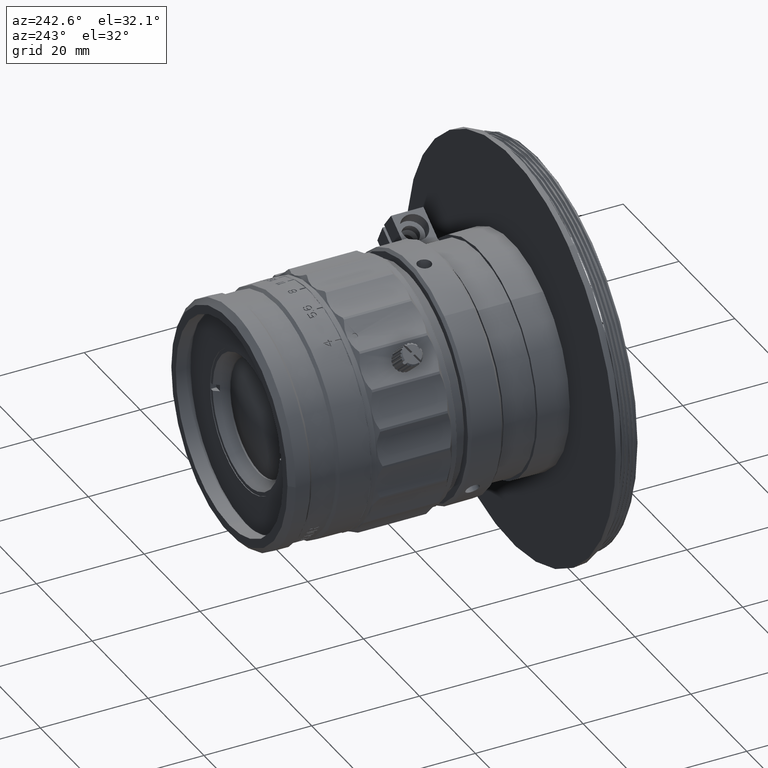
[diagram: clean part render]
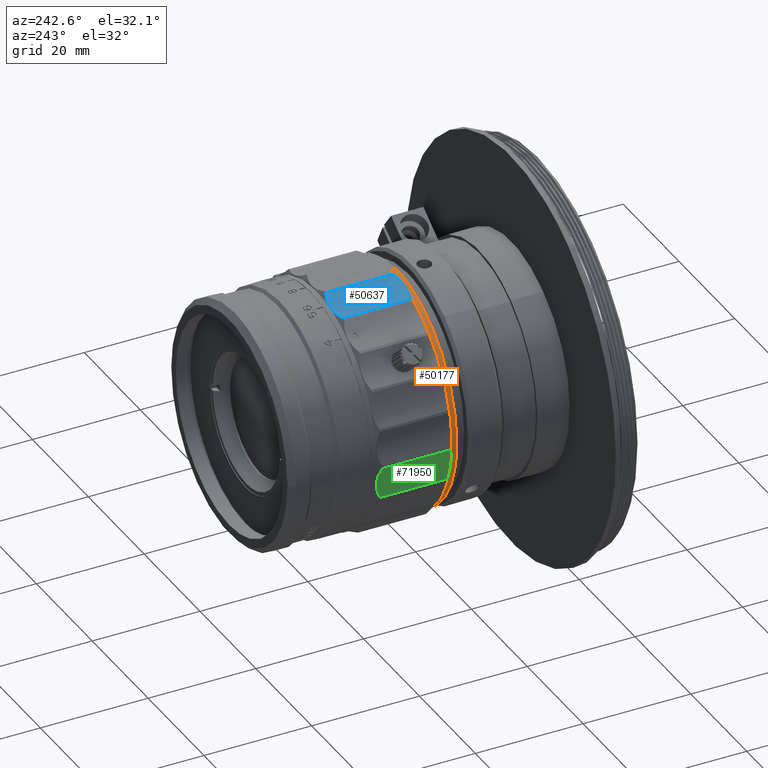
[diagram: same view with three faces highlighted in distinct colors, each labeled with its STEP entity id]
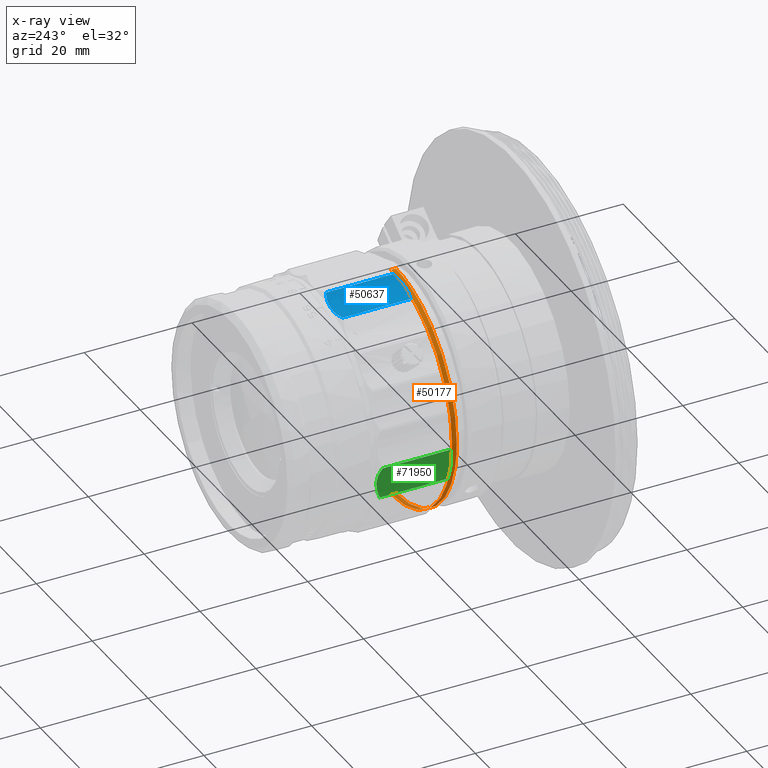
[diagram: x-ray of the same camera — body ghosted, the three highlighted faces saturated]
A machine part, auxiliary view with three faces highlighted in distinct colors.
The next image is the same camera in x-ray (body ghosted, the three faces saturated) — at least one of them is partly hidden behind the body in this view.
Their STEP definitions:

[orange] entity #50177 — the highlighted face is a freeform B-spline surface patch.
#925 = CARTESIAN_POINT ( 'NONE',  ( 13.03904262852874041, 28.15326239999565061, 70.65835875099560326 ) ) ;
#974 = EDGE_CURVE ( 'NONE', #14579, #4726, #38221, .T. ) ;
#1238 = B_SPLINE_CURVE_WITH_KNOTS ( 'NONE', 1,
 ( #12900, #40973 ),
 .UNSPECIFIED., .F., .F.,
 ( 2, 2 ),
 ( -1.000000000000000000, 0.0000000000000000000 ),
 .UNSPECIFIED. ) ;
#1413 = CARTESIAN_POINT ( 'NONE',  ( 0.2688982990429640840, 28.15326240000001334, 27.05835874608746394 ) ) ;
#1557 = VERTEX_POINT ( 'NONE', #56327 ) ;
#2166 = CARTESIAN_POINT ( 'NONE',  ( 13.03904262852874041, 27.25326239999999700, 70.65835875100000862 ) ) ;
#4726 = VERTEX_POINT ( 'NONE', #62807 ) ;
#6589 = EDGE_CURVE ( 'NONE', #12415, #1557, #15134, .T. ) ;
#7671 = CARTESIAN_POINT ( 'NONE',  ( -8.760957366995629769, 28.15326239999565061, 48.85835875249040328 ) ) ;
#12415 = VERTEX_POINT ( 'NONE', #14160 ) ;
#12732 = CARTESIAN_POINT ( 'NONE',  ( -8.760957366995629769, 28.15326239999565061, 48.85835875249040328 ) ) ;
#12900 = CARTESIAN_POINT ( 'NONE',  ( 13.03904263449042134, 28.15326239999999913, 27.05835875100000010 ) ) ;
#13690 = EDGE_CURVE ( 'NONE', #1557, #4726, #66036, .T. ) ;
#14160 = CARTESIAN_POINT ( 'NONE',  ( -8.760957366999999607, 27.25326239999999700, 48.85835875249040328 ) ) ;
#14579 = VERTEX_POINT ( 'NONE', #35716 ) ;
#14588 = CARTESIAN_POINT ( 'NONE',  ( 13.03904263449042134, 27.25326239999999700, 27.05835875100000010 ) ) ;
#14694 = CARTESIAN_POINT ( 'NONE',  ( -8.760957366999999607, 27.25326239999999700, 48.85835875249040328 ) ) ;
#15134 =( BOUNDED_CURVE ( )  B_SPLINE_CURVE ( 3, ( #14694, #30935, #53464, #2166 ),
 .UNSPECIFIED., .F., .F. ) 
 B_SPLINE_CURVE_WITH_KNOTS ( ( 4, 4 ),
 ( -1.570796326794895004, 0.0000000000000000000 ),
 .UNSPECIFIED. ) 
 CURVE ( )  GEOMETRIC_REPRESENTATION_ITEM ( )  RATIONAL_B_SPLINE_CURVE ( ( 1.000000000000000000, 0.8047378543117238436, 0.8047378543117238436, 1.000000000000000000 ) ) 
 REPRESENTATION_ITEM ( '' )  );
#15242 = CARTESIAN_POINT ( 'NONE',  ( -30.56095735805750380, 27.25326240000000055, 70.65835873311500848 ) ) ;
#21512 = CARTESIAN_POINT ( 'NONE',  ( 13.03904262405749037, 28.15326239999999913, 70.65835875100002283 ) ) ;
#25266 = VERTEX_POINT ( 'NONE', #72036 ) ;
#26456 = VERTEX_POINT ( 'NONE', #44619 ) ;
#26967 = CARTESIAN_POINT ( 'NONE',  ( 13.03904262852874041, 28.15326239999565061, 70.65835875099560326 ) ) ;
#27768 = CARTESIAN_POINT ( 'NONE',  ( -30.56095735805750380, 28.15326240000000624, 70.65835873311500848 ) ) ;
#28363 = EDGE_CURVE ( 'NONE', #26456, #25266, #1238, .T. ) ;
#30488 = ORIENTED_EDGE ( 'NONE', *, *, #30709, .F. ) ;
#30709 = EDGE_CURVE ( 'NONE', #26456, #14579, #49976, .T. ) ;
#30935 = CARTESIAN_POINT ( 'NONE',  ( -8.760957362087458122, 27.25326240000000055, 61.62850309160416629 ) ) ;
#31657 =( BOUNDED_CURVE ( )  B_SPLINE_CURVE ( 3, ( #14588, #54454, #65889, #50008 ),
 .UNSPECIFIED., .F., .F. ) 
 B_SPLINE_CURVE_WITH_KNOTS ( ( 4, 4 ),
 ( -1.570796326794895004, 0.0000000000000000000 ),
 .UNSPECIFIED. ) 
 CURVE ( )  GEOMETRIC_REPRESENTATION_ITEM ( )  RATIONAL_B_SPLINE_CURVE ( ( 1.000000000000000000, 0.8047378540760217192, 0.8047378540760217192, 1.000000000000000000 ) ) 
 REPRESENTATION_ITEM ( '' )  );
#32507 = CARTESIAN_POINT ( 'NONE',  ( 13.03904262852874041, 27.25326239999999700, 70.65835875100000862 ) ) ;
#33057 = EDGE_LOOP ( 'NONE', ( #45771, #30488, #66736, #51260, #50581, #35174 ) ) ;
#34146 = CARTESIAN_POINT ( 'NONE',  ( 0.2688982951356555517, 28.15326239998692515, 70.65835875360610885 ) ) ;
#35174 = ORIENTED_EDGE ( 'NONE', *, *, #13690, .T. ) ;
#35261 = CARTESIAN_POINT ( 'NONE',  ( -8.760957366986898975, 28.15326239998690738, 61.62850309333560261 ) ) ;
#35386 = CARTESIAN_POINT ( 'NONE',  ( 13.03904263449042134, 28.15326239999999913, 27.05835875100000010 ) ) ;
#35716 = CARTESIAN_POINT ( 'NONE',  ( -8.760957366995629769, 28.15326239999565061, 48.85835875249040328 ) ) ;
#38221 =( BOUNDED_CURVE ( )  B_SPLINE_CURVE ( 3, ( #12732, #35261, #34146, #925 ),
 .UNSPECIFIED., .F., .F. ) 
 B_SPLINE_CURVE_WITH_KNOTS ( ( 4, 4 ),
 ( -1.570796326794895004, 0.0000000000000000000 ),
 .UNSPECIFIED. ) 
 CURVE ( )  GEOMETRIC_REPRESENTATION_ITEM ( )  RATIONAL_B_SPLINE_CURVE ( ( 1.000000000000000000, 0.8047378540760217192, 0.8047378540760217192, 1.000000000000000000 ) ) 
 REPRESENTATION_ITEM ( '' )  );
#40973 = CARTESIAN_POINT ( 'NONE',  ( 13.03904263449042134, 27.25326239999999700, 27.05835875100000010 ) ) ;
#44049 = CARTESIAN_POINT ( 'NONE',  ( -30.56095734911500017, 27.25326240000000055, 27.05835875100000010 ) ) ;
#44409 = FACE_OUTER_BOUND ( 'NONE', #33057, .T. ) ;
#44619 = CARTESIAN_POINT ( 'NONE',  ( 13.03904263449042134, 28.15326239999999913, 27.05835875100000010 ) ) ;
#45771 = ORIENTED_EDGE ( 'NONE', *, *, #974, .F. ) ;
#47192 = CARTESIAN_POINT ( 'NONE',  ( -8.760957364706655426, 28.15326239999999558, 36.08821440474175546 ) ) ;
#49578 = CARTESIAN_POINT ( 'NONE',  ( 13.03904263299999400, 27.25326239999999700, 27.05835875099998944 ) ) ;
#49976 =( BOUNDED_CURVE ( )  B_SPLINE_CURVE ( 3, ( #35386, #1413, #47192, #7671 ),
 .UNSPECIFIED., .F., .F. ) 
 B_SPLINE_CURVE_WITH_KNOTS ( ( 4, 4 ),
 ( -1.570796326794895004, 0.0000000000000000000 ),
 .UNSPECIFIED. ) 
 CURVE ( )  GEOMETRIC_REPRESENTATION_ITEM ( )  RATIONAL_B_SPLINE_CURVE ( ( 1.000000000000000000, 0.8047378540760217192, 0.8047378540760217192, 1.000000000000000000 ) ) 
 REPRESENTATION_ITEM ( '' )  );
#50008 = CARTESIAN_POINT ( 'NONE',  ( -8.760957366999999607, 27.25326239999999700, 48.85835875249040328 ) ) ;
#50177 = ADVANCED_FACE ( 'NONE', ( #44409 ), #52123, .F. ) ;
#50581 = ORIENTED_EDGE ( 'NONE', *, *, #6589, .T. ) ;
#51260 = ORIENTED_EDGE ( 'NONE', *, *, #66693, .T. ) ;
#52123 =( BOUNDED_SURFACE ( )  B_SPLINE_SURFACE ( 1, 3, ( 
 ( #21512, #27768, #55837, #72832 ),
 ( #65823, #15242, #44049, #49578 ) ),
 .UNSPECIFIED., .F., .F., .F. ) 
 B_SPLINE_SURFACE_WITH_KNOTS ( ( 2, 2 ),
 ( 4, 4 ),
 ( 0.0000000000000000000, 1.000000000000000000 ),
 ( 0.0000000000000000000, 1.000000000000000000 ),
 .UNSPECIFIED. ) 
 GEOMETRIC_REPRESENTATION_ITEM ( )  RATIONAL_B_SPLINE_SURFACE ( (
 ( 1.000000000000000000, 0.3333333334700690487, 0.3333333334700690487, 1.000000000000000000),
 ( 1.000000000000000000, 0.3333333334700690487, 0.3333333334700690487, 1.000000000000000000) ) ) 
 REPRESENTATION_ITEM ( '' )  SURFACE ( )  );
#53464 = CARTESIAN_POINT ( 'NONE',  ( 0.2688982918395820820, 27.25326240000000055, 70.65835874576160336 ) ) ;
#54454 = CARTESIAN_POINT ( 'NONE',  ( 0.2688982867417415434, 27.25326239999999700, 27.05835875329334073 ) ) ;
#55837 = CARTESIAN_POINT ( 'NONE',  ( -30.56095734911500017, 28.15326240000000624, 27.05835875100000010 ) ) ;
#56327 = CARTESIAN_POINT ( 'NONE',  ( 13.03904262852874041, 27.25326239999999700, 70.65835875100000862 ) ) ;
#62807 = CARTESIAN_POINT ( 'NONE',  ( 13.03904262852874041, 28.15326239999565061, 70.65835875099560326 ) ) ;
#65823 = CARTESIAN_POINT ( 'NONE',  ( 13.03904262405749037, 27.25326239999999700, 70.65835875100002283 ) ) ;
#65889 = CARTESIAN_POINT ( 'NONE',  ( -8.760957371912549974, 27.25326239999999700, 36.08821441704296262 ) ) ;
#66036 = B_SPLINE_CURVE_WITH_KNOTS ( 'NONE', 1,
 ( #32507, #26967 ),
 .UNSPECIFIED., .F., .F.,
 ( 2, 2 ),
 ( -1.000000000000000000, 0.0000000000000000000 ),
 .UNSPECIFIED. ) ;
#66693 = EDGE_CURVE ( 'NONE', #25266, #12415, #31657, .T. ) ;
#66736 = ORIENTED_EDGE ( 'NONE', *, *, #28363, .T. ) ;
#72036 = CARTESIAN_POINT ( 'NONE',  ( 13.03904263449042134, 27.25326239999999700, 27.05835875100000010 ) ) ;
#72832 = CARTESIAN_POINT ( 'NONE',  ( 13.03904263299999400, 28.15326239999999913, 27.05835875099998944 ) ) ;

[blue] entity #50637 — the highlighted face is a freeform B-spline surface patch.
#779 = ORIENTED_EDGE ( 'NONE', *, *, #35118, .T. ) ;
#4120 = CARTESIAN_POINT ( 'NONE',  ( 10.88898748195123112, 28.13018945723671038, 71.25539567373813554 ) ) ;
#4469 = CARTESIAN_POINT ( 'NONE',  ( 9.679009942915314468, 41.82673240047798657, 70.67784002498591178 ) ) ;
#4834 = CARTESIAN_POINT ( 'NONE',  ( 6.362159460868524796, 41.88065777170962178, 69.84443326052802092 ) ) ;
#9273 = CARTESIAN_POINT ( 'NONE',  ( 7.666735221444224813, 42.04320062066624786, 70.04969894259804164 ) ) ;
#9292 = CARTESIAN_POINT ( 'NONE',  ( 9.006651737537163527, 42.12633534276328362, 70.22459448672188387 ) ) ;
#10110 = CARTESIAN_POINT ( 'NONE',  ( 5.694546594571083808, 28.53889821843947416, 69.79335691502929251 ) ) ;
#10827 = CARTESIAN_POINT ( 'NONE',  ( 6.211431550435209559, 28.40809650132534259, 69.82977334741777042 ) ) ;
#12053 = EDGE_CURVE ( 'NONE', #24103, #48447, #32754, .T. ) ;
#13944 =( BOUNDED_SURFACE ( )  B_SPLINE_SURFACE ( 1, 3, ( 
 ( #4120, #31430, #48803, #42539 ),
 ( #59868, #9292, #31799, #21459 ) ),
 .UNSPECIFIED., .F., .F., .F. ) 
 B_SPLINE_SURFACE_WITH_KNOTS ( ( 2, 2 ),
 ( 4, 4 ),
 ( 0.002902396513999999476, 0.9970976034859999615 ),
 ( 0.0000000000000000000, 1.000000000000000000 ),
 .UNSPECIFIED. ) 
 GEOMETRIC_REPRESENTATION_ITEM ( )  RATIONAL_B_SPLINE_SURFACE ( (
 ( 1.000000000000000000, 0.9767093259735520894, 0.9767093259735520894, 1.000000000000000000),
 ( 1.000000000000000000, 0.9767093259735520894, 0.9767093259735520894, 1.000000000000000000) ) ) 
 REPRESENTATION_ITEM ( '' )  SURFACE ( )  );
#14449 = CARTESIAN_POINT ( 'NONE',  ( 10.65645723627469366, 41.50779733676799310, 71.12805789461354777 ) ) ;
#14840 = EDGE_LOOP ( 'NONE', ( #52261, #27652, #779, #47638 ) ) ;
#15527 = CARTESIAN_POINT ( 'NONE',  ( 6.465428746391545189, 41.90110621381143119, 69.85558150469051952 ) ) ;
#16384 = CARTESIAN_POINT ( 'NONE',  ( 5.039809819816315262, 28.74872746323201511, 69.77793062691345938 ) ) ;
#16739 = CARTESIAN_POINT ( 'NONE',  ( 7.408801021441499657, 28.21313946366738179, 69.98757417531098213 ) ) ;
#20355 = CARTESIAN_POINT ( 'NONE',  ( 10.88898747911454024, 41.40326240125850177, 71.25539567240848271 ) ) ;
#21156 = B_SPLINE_CURVE_WITH_KNOTS ( 'NONE', 3,
 ( #20355, #14449, #65020, #42884, #65385, #4469, #26246, #60572, #70941, #48780, #65754, #9273, #72407, #49139, #59485, #66479, #15527, #55039, #4834, #31413, #36979, #53947 ),
 .UNSPECIFIED., .F., .F.,
 ( 4, 2, 1, 1, 2, 2, 2, 2, 1, 1, 2, 2, 4 ),
 ( -1.000000000000000000, -0.8750000000000006661, -0.8125000000000017764, -0.7812500000000011102, -0.7656250000000015543, -0.7500000000000019984, -0.4999999999999956701, -0.3749999999999932276, -0.3124999999999922284, -0.2812499999999917843, -0.2656249999999915623, -0.2499999999999914513, 0.0000000000000000000 ),
 .UNSPECIFIED. ) ;
#21459 = CARTESIAN_POINT ( 'NONE',  ( 4.774809269694126002, 42.12633534276329073, 69.78567216815591223 ) ) ;
#21913 = CARTESIAN_POINT ( 'NONE',  ( 8.453009354305134337, 28.22745754864074641, 70.24804069778122084 ) ) ;
#23206 = B_SPLINE_CURVE_WITH_KNOTS ( 'NONE', 3,
 ( #44815, #16384, #67323, #10110, #27452, #61418, #10827, #72521, #49993, #38556, #16739, #55524, #21913, #39276, #61061, #32638, #33722, #56245, #61782, #44458, #33363, #37828 ),
 .UNSPECIFIED., .F., .F.,
 ( 4, 2, 1, 1, 2, 2, 2, 2, 1, 1, 2, 2, 4 ),
 ( -1.000000000000000000, -0.8749999999999916733, -0.8124999999999880096, -0.7812499999999863443, -0.7656249999999854561, -0.7499999999999846789, -0.4999999999999791278, -0.3749999999999762412, -0.3124999999999739098, -0.2812499999999721334, -0.2656249999999723554, -0.2499999999999725775, 0.0000000000000000000 ),
 .UNSPECIFIED. ) ;
#23584 = CARTESIAN_POINT ( 'NONE',  ( 4.774809264642540185, 41.40326240125850177, 69.78567216706809972 ) ) ;
#24103 = VERTEX_POINT ( 'NONE', #66367 ) ;
#25153 = VERTEX_POINT ( 'NONE', #40321 ) ;
#25284 = EDGE_CURVE ( 'NONE', #71511, #24103, #21156, .T. ) ;
#26246 = CARTESIAN_POINT ( 'NONE',  ( 9.589274961164578670, 41.84842829867466918, 70.64173787899133572 ) ) ;
#27452 = CARTESIAN_POINT ( 'NONE',  ( 5.889419003485246940, 28.48464143479920097, 69.80368738997134415 ) ) ;
#27652 = ORIENTED_EDGE ( 'NONE', *, *, #12053, .T. ) ;
#31413 = CARTESIAN_POINT ( 'NONE',  ( 5.821580683236759590, 41.76800592011334601, 69.78986790935802276 ) ) ;
#31430 = CARTESIAN_POINT ( 'NONE',  ( 9.006651737537163527, 28.13018945723671038, 70.22459448672188387 ) ) ;
#31799 = CARTESIAN_POINT ( 'NONE',  ( 6.919992636525472918, 42.12633534276328362, 69.72300427746924356 ) ) ;
#32638 = CARTESIAN_POINT ( 'NONE',  ( 9.255956318507953640, 28.33626664711491472, 70.51356460504977974 ) ) ;
#32754 = B_SPLINE_CURVE_WITH_KNOTS ( 'NONE', 1,
 ( #23584, #62361 ),
 .UNSPECIFIED., .F., .F.,
 ( 2, 2 ),
 ( -1.000000000000000000, 0.0000000000000000000 ),
 .UNSPECIFIED. ) ;
#33363 = CARTESIAN_POINT ( 'NONE',  ( 10.42670593436594828, 28.64544180936283269, 71.00224191548819874 ) ) ;
#33722 = CARTESIAN_POINT ( 'NONE',  ( 9.351297691511476273, 28.35541858618856637, 70.54928542794840496 ) ) ;
#35118 = EDGE_CURVE ( 'NONE', #48447, #25153, #23206, .T. ) ;
#36979 = CARTESIAN_POINT ( 'NONE',  ( 5.301643385029749744, 41.61108299063718619, 69.77028160375928678 ) ) ;
#37828 = CARTESIAN_POINT ( 'NONE',  ( 10.88898747624256025, 28.85326239874155263, 71.25539567213269265 ) ) ;
#38077 = EDGE_CURVE ( 'NONE', #25153, #71511, #56214, .T. ) ;
#38556 = CARTESIAN_POINT ( 'NONE',  ( 6.878398454050712374, 28.26891136124837800, 69.89696586985191118 ) ) ;
#38574 = CARTESIAN_POINT ( 'NONE',  ( 10.88898747624256025, 28.85326239874155263, 71.25539567213269265 ) ) ;
#39276 = CARTESIAN_POINT ( 'NONE',  ( 8.839957803008067216, 28.26976529872851529, 70.36920154464021948 ) ) ;
#40321 = CARTESIAN_POINT ( 'NONE',  ( 10.88898747624256025, 28.85326239874155263, 71.25539567213269265 ) ) ;
#42539 = CARTESIAN_POINT ( 'NONE',  ( 4.774809269694126002, 28.13018945723671038, 69.78567216815591223 ) ) ;
#42884 = CARTESIAN_POINT ( 'NONE',  ( 10.06624045133492196, 41.71762658156053760, 70.84422278540365880 ) ) ;
#44458 = CARTESIAN_POINT ( 'NONE',  ( 9.954670820156668043, 28.48851887988666576, 70.78337832195350643 ) ) ;
#44815 = CARTESIAN_POINT ( 'NONE',  ( 4.774809268934800066, 28.85326239874155263, 69.78567216876311363 ) ) ;
#47638 = ORIENTED_EDGE ( 'NONE', *, *, #38077, .T. ) ;
#48447 = VERTEX_POINT ( 'NONE', #73082 ) ;
#48780 = CARTESIAN_POINT ( 'NONE',  ( 8.964636614601328546, 41.98761343875164442, 70.39845489361937325 ) ) ;
#48803 = CARTESIAN_POINT ( 'NONE',  ( 6.919992636525472918, 28.13018945723671038, 69.72300427746924356 ) ) ;
#49139 = CARTESIAN_POINT ( 'NONE',  ( 7.002751433361564359, 41.98675950127147161, 69.92757467568165453 ) ) ;
#49993 = CARTESIAN_POINT ( 'NONE',  ( 6.305907051815060171, 28.38755616759128486, 69.83873253004875892 ) ) ;
#50637 = ADVANCED_FACE ( 'NONE', ( #55420 ), #13944, .T. ) ;
#50893 = CARTESIAN_POINT ( 'NONE',  ( 10.88898747911454024, 41.40326240125850177, 71.25539567240848271 ) ) ;
#52261 = ORIENTED_EDGE ( 'NONE', *, *, #25284, .T. ) ;
#53947 = CARTESIAN_POINT ( 'NONE',  ( 4.774809264642540185, 41.40326240125850177, 69.78567216706809972 ) ) ;
#55039 = CARTESIAN_POINT ( 'NONE',  ( 6.397934635580488028, 41.88789851075969750, 69.84818935505069248 ) ) ;
#55420 = FACE_OUTER_BOUND ( 'NONE', #14840, .T. ) ;
#55524 = CARTESIAN_POINT ( 'NONE',  ( 8.193010328550036192, 28.21332417933376036, 70.17620472420310307 ) ) ;
#56214 = B_SPLINE_CURVE_WITH_KNOTS ( 'NONE', 1,
 ( #38574, #67340 ),
 .UNSPECIFIED., .F., .F.,
 ( 2, 2 ),
 ( -1.000000000000000000, 0.0000000000000000000 ),
 .UNSPECIFIED. ) ;
#56245 = CARTESIAN_POINT ( 'NONE',  ( 9.414777657697158020, 28.36862628924032848, 70.57337677003511089 ) ) ;
#59485 = CARTESIAN_POINT ( 'NONE',  ( 6.802037509428872752, 41.96032870219578115, 69.89693435357912676 ) ) ;
#59868 = CARTESIAN_POINT ( 'NONE',  ( 10.88898748195123112, 42.12633534276329073, 71.25539567373813554 ) ) ;
#60572 = CARTESIAN_POINT ( 'NONE',  ( 9.529413329664997434, 41.86248982387073880, 70.61793367971532120 ) ) ;
#61061 = CARTESIAN_POINT ( 'NONE',  ( 9.032669301788747163, 28.29619609780422351, 70.43313265472525586 ) ) ;
#61418 = CARTESIAN_POINT ( 'NONE',  ( 6.115091956084119040, 28.42979239952202875, 69.82114696762768347 ) ) ;
#61782 = CARTESIAN_POINT ( 'NONE',  ( 9.448351462643742593, 28.37586702829039353, 70.58629075304465061 ) ) ;
#62361 = CARTESIAN_POINT ( 'NONE',  ( 4.774809268934800066, 28.85326239874155263, 69.78567216876311363 ) ) ;
#65020 = CARTESIAN_POINT ( 'NONE',  ( 10.42144753614329744, 41.59945524783833548, 71.00938195666043384 ) ) ;
#65385 = CARTESIAN_POINT ( 'NONE',  ( 9.887963039340023741, 41.77188336520078593, 70.76485566828199580 ) ) ;
#65754 = CARTESIAN_POINT ( 'NONE',  ( 8.451000275522996930, 42.04338533633263353, 70.23809757922212782 ) ) ;
#66367 = CARTESIAN_POINT ( 'NONE',  ( 4.774809264642540185, 41.40326240125850177, 69.78567216706809972 ) ) ;
#66479 = CARTESIAN_POINT ( 'NONE',  ( 6.566588913263948335, 41.92025815288509705, 69.86709563657694844 ) ) ;
#67323 = CARTESIAN_POINT ( 'NONE',  ( 5.303082157672045049, 28.65706955216166207, 69.77903150958094614 ) ) ;
#67340 = CARTESIAN_POINT ( 'NONE',  ( 10.88898747911454024, 41.40326240125850177, 71.25539567240848271 ) ) ;
#70941 = CARTESIAN_POINT ( 'NONE',  ( 9.501049158415497686, 41.86896863240873756, 70.60677940143013132 ) ) ;
#71511 = VERTEX_POINT ( 'NONE', #50893 ) ;
#72407 = CARTESIAN_POINT ( 'NONE',  ( 7.402492318476292965, 42.02906725135923693, 69.99551786910735984 ) ) ;
#72521 = CARTESIAN_POINT ( 'NONE',  ( 6.275572130626528633, 28.39403497612926586, 69.83577674592446272 ) ) ;
#73082 = CARTESIAN_POINT ( 'NONE',  ( 4.774809268934800066, 28.85326239874155263, 69.78567216876311363 ) ) ;

[green] entity #71950 — the highlighted face is a freeform B-spline surface patch.
#1815 = CARTESIAN_POINT ( 'NONE',  ( -8.970522503969958095, 41.82673240047795815, 47.13829327435860961 ) ) ;
#2788 = CARTESIAN_POINT ( 'NONE',  ( -8.447340703189530231, 28.85326239874155263, 42.18113394146185158 ) ) ;
#3463 = CARTESIAN_POINT ( 'NONE',  ( -8.447340703189530231, 28.85326239874155263, 42.18113394146185158 ) ) ;
#3898 = B_SPLINE_CURVE_WITH_KNOTS ( 'NONE', 3,
 ( #8077, #52396, #18419, #41700, #13257, #1815, #40964, #12890, #35788, #30584, #57937, #24315, #34680, #19155, #69364, #30222, #52745, #59750, #20616, #49037, #3998, #14344 ),
 .UNSPECIFIED., .F., .F.,
 ( 4, 2, 1, 1, 2, 2, 2, 2, 1, 1, 2, 2, 4 ),
 ( -1.000000000000000000, -0.8749999999999952260, -0.8124999999999934497, -0.7812499999999925615, -0.7656249999999924505, -0.7499999999999923395, -0.4999999999999800160, -0.3749999999999739098, -0.3124999999999708011, -0.2812499999999706901, -0.2656249999999704681, -0.2499999999999703570, 0.0000000000000000000 ),
 .UNSPECIFIED. ) ;
#3998 = CARTESIAN_POINT ( 'NONE',  ( -8.392622812191982362, 41.61108299063718619, 42.70534478381421195 ) ) ;
#4568 = CARTESIAN_POINT ( 'NONE',  ( -8.725449484168965597, 28.26976529872852240, 46.27852271216907099 ) ) ;
#4571 = VERTEX_POINT ( 'NONE', #2788 ) ;
#4933 = CARTESIAN_POINT ( 'NONE',  ( -9.055165531448507110, 28.48851887988666221, 47.42107023487108108 ) ) ;
#8077 = CARTESIAN_POINT ( 'NONE',  ( -9.456041452114559931, 41.40326240125850177, 48.38804824559839801 ) ) ;
#8509 = CARTESIAN_POINT ( 'NONE',  ( -9.456041450728168485, 28.13018945723671038, 48.38804824761261614 ) ) ;
#11489 = FACE_OUTER_BOUND ( 'NONE', #61758, .T. ) ;
#12890 = CARTESIAN_POINT ( 'NONE',  ( -8.921963037916713191, 41.86248982387073880, 46.98463815699899015 ) ) ;
#13257 = CARTESIAN_POINT ( 'NONE',  ( -9.041679749279079914, 41.77188336520080014, 47.35316478207112567 ) ) ;
#13679 = CARTESIAN_POINT ( 'NONE',  ( -8.447340704564529901, 42.12633534276329073, 42.18113394187346188 ) ) ;
#14344 = CARTESIAN_POINT ( 'NONE',  ( -8.447340702219719333, 41.40326240125850177, 42.18113393834110525 ) ) ;
#17074 = CARTESIAN_POINT ( 'NONE',  ( -8.382010661525885808, 28.48464143479920807, 43.29397329107646186 ) ) ;
#18419 = CARTESIAN_POINT ( 'NONE',  ( -9.245654944801049879, 41.59945524783834259, 47.90343101655018643 ) ) ;
#19155 = CARTESIAN_POINT ( 'NONE',  ( -8.422352096905559193, 41.98675950127147161, 44.41345072699267149 ) ) ;
#19224 = CARTESIAN_POINT ( 'NONE',  ( -8.568789720624113926, 28.13018945723671038, 46.43394402590887893 ) ) ;
#20616 = CARTESIAN_POINT ( 'NONE',  ( -8.387314659891941915, 41.88065777170961468, 43.76843681435349964 ) ) ;
#21174 = CARTESIAN_POINT ( 'NONE',  ( -8.633544121281422790, 28.22745754864074996, 45.88360188841107856 ) ) ;
#21582 = CARTESIAN_POINT ( 'NONE',  ( -8.447340702219719333, 41.40326240125850177, 42.18113393834110525 ) ) ;
#23966 = VERTEX_POINT ( 'NONE', #64180 ) ;
#24315 = CARTESIAN_POINT ( 'NONE',  ( -8.494515309174284212, 42.04320062066622654, 45.08470423961028217 ) ) ;
#27428 = CARTESIAN_POINT ( 'NONE',  ( -8.401240731423447627, 28.65706955216166563, 42.70743342163084577 ) ) ;
#27790 = CARTESIAN_POINT ( 'NONE',  ( -8.896466352175970371, 28.37586702829039353, 46.90143827654971176 ) ) ;
#27995 = VERTEX_POINT ( 'NONE', #68738 ) ;
#28147 = CARTESIAN_POINT ( 'NONE',  ( -8.419817293728097951, 28.74872746323201156, 42.44481497456771990 ) ) ;
#29324 = CARTESIAN_POINT ( 'NONE',  ( -9.456041452114559931, 41.40326240125850177, 48.38804824559839801 ) ) ;
#30222 = CARTESIAN_POINT ( 'NONE',  ( -8.394636635278544645, 41.92025815288509705, 43.97398820151894938 ) ) ;
#30584 = CARTESIAN_POINT ( 'NONE',  ( -8.745303773298573446, 41.98761343875163021, 46.40503899436615143 ) ) ;
#33336 = CARTESIAN_POINT ( 'NONE',  ( -8.385153029912720157, 28.39403497612927652, 43.68144469718711775 ) ) ;
#33353 = EDGE_CURVE ( 'NONE', #23966, #27995, #61277, .T. ) ;
#34680 = CARTESIAN_POINT ( 'NONE',  ( -8.460232633744675823, 42.02906725135925115, 44.81715125670989863 ) ) ;
#34749 = ORIENTED_EDGE ( 'NONE', *, *, #59406, .T. ) ;
#35043 = B_SPLINE_CURVE_WITH_KNOTS ( 'NONE', 3,
 ( #3463, #28147, #27428, #50692, #17074, #66934, #44432, #33336, #55500, #49965, #50328, #55862, #21174, #4568, #38890, #49602, #72496, #44788, #27790, #4933, #61393, #61755 ),
 .UNSPECIFIED., .F., .F.,
 ( 4, 2, 1, 1, 2, 2, 2, 2, 1, 1, 2, 2, 4 ),
 ( -1.000000000000000000, -0.8750000000000033307, -0.8125000000000066613, -0.7812500000000068834, -0.7656250000000055511, -0.7500000000000042188, -0.4999999999999894529, -0.3749999999999837907, -0.3124999999999809042, -0.2812499999999794609, -0.2656249999999803491, -0.2499999999999812372, 0.0000000000000000000 ),
 .UNSPECIFIED. ) ;
#35642 = ORIENTED_EDGE ( 'NONE', *, *, #33353, .T. ) ;
#35788 = CARTESIAN_POINT ( 'NONE',  ( -8.912959606569650362, 41.86896863240874467, 46.95551973796083445 ) ) ;
#36637 = B_SPLINE_CURVE_WITH_KNOTS ( 'NONE', 1,
 ( #71344, #49547 ),
 .UNSPECIFIED., .F., .F.,
 ( 2, 2 ),
 ( -1.000000000000000000, 0.0000000000000000000 ),
 .UNSPECIFIED. ) ;
#38890 = CARTESIAN_POINT ( 'NONE',  ( -8.774800481621959136, 28.29619609780422707, 46.47547292833905175 ) ) ;
#39848 = EDGE_CURVE ( 'NONE', #48952, #4571, #36637, .T. ) ;
#40964 = CARTESIAN_POINT ( 'NONE',  ( -8.941227210498320588, 41.84842829867466207, 47.04611129321030916 ) ) ;
#41035 = CARTESIAN_POINT ( 'NONE',  ( -8.224538290732828827, 42.12633534276328362, 44.31563576343364730 ) ) ;
#41700 = CARTESIAN_POINT ( 'NONE',  ( -9.107502251817917838, 41.71762658156051629, 47.53687480528179776 ) ) ;
#41762 = CARTESIAN_POINT ( 'NONE',  ( -8.447340704564529901, 28.13018945723671038, 42.18113394187346188 ) ) ;
#44432 = CARTESIAN_POINT ( 'NONE',  ( -8.383959649666598679, 28.40809650132532838, 43.61703483247253388 ) ) ;
#44788 = CARTESIAN_POINT ( 'NONE',  ( -8.886097452857820045, 28.36862628924032492, 46.86699328761527283 ) ) ;
#46574 = CARTESIAN_POINT ( 'NONE',  ( -8.568789720624113926, 42.12633534276328362, 46.43394402590887893 ) ) ;
#48952 = VERTEX_POINT ( 'NONE', #21582 ) ;
#49037 = CARTESIAN_POINT ( 'NONE',  ( -8.373299386776832165, 41.76800592011333890, 43.22529192233092488 ) ) ;
#49547 = CARTESIAN_POINT ( 'NONE',  ( -8.447340703189530231, 28.85326239874155263, 42.18113394146185158 ) ) ;
#49602 = CARTESIAN_POINT ( 'NONE',  ( -8.838321268310625811, 28.33626664711491472, 46.70414627642934136 ) ) ;
#49965 = CARTESIAN_POINT ( 'NONE',  ( -8.401121789037361509, 28.26891136124837089, 44.28715805691783203 ) ) ;
#50328 = CARTESIAN_POINT ( 'NONE',  ( -8.451839702165933943, 28.21313946366737824, 44.82284868628368457 ) ) ;
#50692 = CARTESIAN_POINT ( 'NONE',  ( -8.386271906028712309, 28.53889821843947772, 43.09887378645619549 ) ) ;
#52396 = CARTESIAN_POINT ( 'NONE',  ( -9.346436742706528022, 41.50779733676799310, 48.14665224307783120 ) ) ;
#52745 = CARTESIAN_POINT ( 'NONE',  ( -8.390714407948230757, 41.90110621381142408, 43.87225044683799524 ) ) ;
#55500 = CARTESIAN_POINT ( 'NONE',  ( -8.385833617588298594, 28.38755616759128486, 43.71191568232298152 ) ) ;
#55862 = CARTESIAN_POINT ( 'NONE',  ( -8.581338767105268772, 28.21332417933377101, 45.61896156365150290 ) ) ;
#57764 = CARTESIAN_POINT ( 'NONE',  ( -9.456041452182869733, 28.85326239874155263, 48.38804824886559430 ) ) ;
#57937 = CARTESIAN_POINT ( 'NONE',  ( -8.623778944343040820, 42.04338533633261221, 45.88085537724304430 ) ) ;
#59406 = EDGE_CURVE ( 'NONE', #4571, #23966, #35043, .T. ) ;
#59750 = CARTESIAN_POINT ( 'NONE',  ( -8.388386769455745906, 41.88789851075969040, 43.80439264721614023 ) ) ;
#61277 = B_SPLINE_CURVE_WITH_KNOTS ( 'NONE', 1,
 ( #57764, #29324 ),
 .UNSPECIFIED., .F., .F.,
 ( 2, 2 ),
 ( -1.000000000000000000, 0.0000000000000000000 ),
 .UNSPECIFIED. ) ;
#61393 = CARTESIAN_POINT ( 'NONE',  ( -9.238141908692831805, 28.64544180936283269, 47.90814113607771674 ) ) ;
#61530 = EDGE_CURVE ( 'NONE', #27995, #48952, #3898, .T. ) ;
#61755 = CARTESIAN_POINT ( 'NONE',  ( -9.456041452182869733, 28.85326239874155263, 48.38804824886559430 ) ) ;
#61758 = EDGE_LOOP ( 'NONE', ( #66870, #67326, #34749, #35642 ) ) ;
#64180 = CARTESIAN_POINT ( 'NONE',  ( -9.456041452182869733, 28.85326239874155263, 48.38804824886559430 ) ) ;
#64257 = CARTESIAN_POINT ( 'NONE',  ( -9.456041450728168485, 42.12633534276329073, 48.38804824761261614 ) ) ;
#64617 = CARTESIAN_POINT ( 'NONE',  ( -8.224538290732828827, 28.13018945723671038, 44.31563576343364730 ) ) ;
#64792 =( BOUNDED_SURFACE ( )  B_SPLINE_SURFACE ( 1, 3, ( 
 ( #8509, #19224, #64617, #41762 ),
 ( #64257, #46574, #41035, #13679 ) ),
 .UNSPECIFIED., .F., .F., .F. ) 
 B_SPLINE_SURFACE_WITH_KNOTS ( ( 2, 2 ),
 ( 4, 4 ),
 ( 0.002902396513999999476, 0.9970976034859999615 ),
 ( 0.0000000000000000000, 1.000000000000000000 ),
 .UNSPECIFIED. ) 
 GEOMETRIC_REPRESENTATION_ITEM ( )  RATIONAL_B_SPLINE_SURFACE ( (
 ( 1.000000000000000000, 0.9767093259735520894, 0.9767093259735520894, 1.000000000000000000),
 ( 1.000000000000000000, 0.9767093259735520894, 0.9767093259735520894, 1.000000000000000000) ) ) 
 REPRESENTATION_ITEM ( '' )  SURFACE ( )  );
#66870 = ORIENTED_EDGE ( 'NONE', *, *, #61530, .T. ) ;
#66934 = CARTESIAN_POINT ( 'NONE',  ( -8.382556857856341637, 28.42979239952201809, 43.52031997285750720 ) ) ;
#67326 = ORIENTED_EDGE ( 'NONE', *, *, #39848, .T. ) ;
#68738 = CARTESIAN_POINT ( 'NONE',  ( -9.456041452114559931, 41.40326240125850177, 48.38804824559839801 ) ) ;
#69364 = CARTESIAN_POINT ( 'NONE',  ( -8.406796821618836901, 41.96032870219578115, 44.21100828576611974 ) ) ;
#71344 = CARTESIAN_POINT ( 'NONE',  ( -8.447340702219719333, 41.40326240125850177, 42.18113393834110525 ) ) ;
#71950 = ADVANCED_FACE ( 'NONE', ( #11489 ), #64792, .T. ) ;
#72496 = CARTESIAN_POINT ( 'NONE',  ( -8.866817338844755980, 28.35541858618857702, 46.80189047604684305 ) ) ;